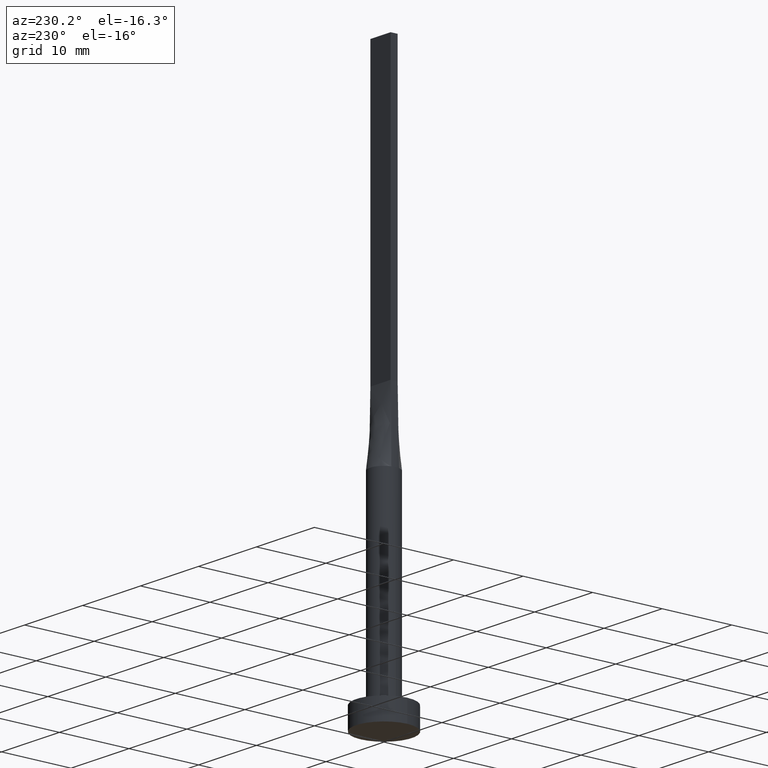
[diagram: clean part render]
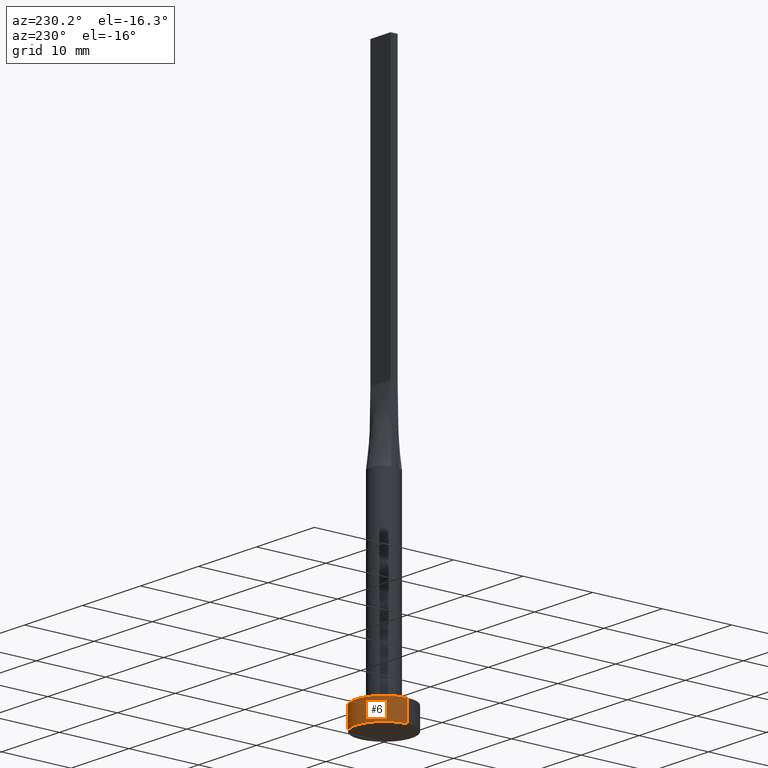
[diagram: same view with one face highlighted and labeled with its STEP entity id]
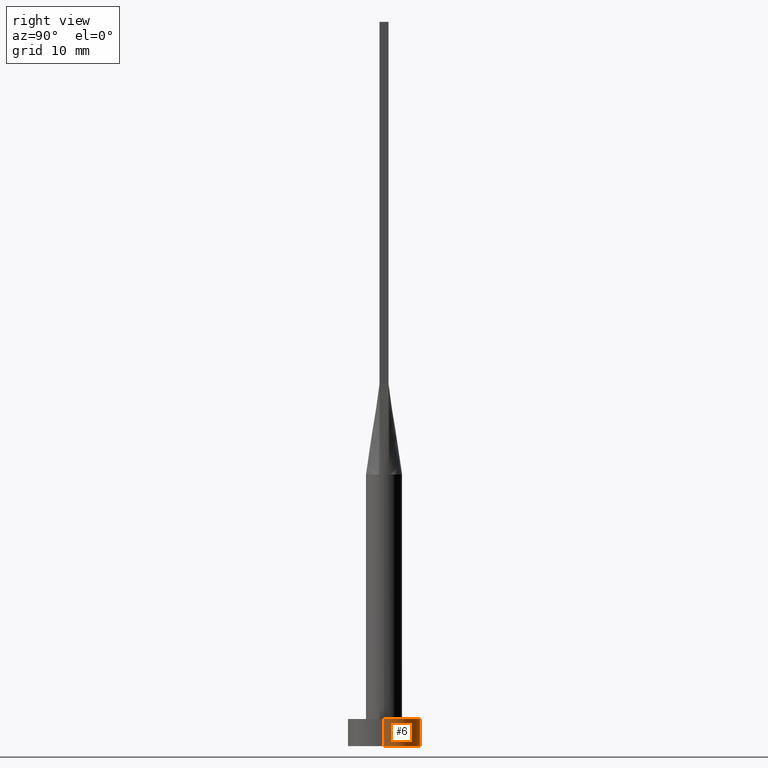
[diagram: same view with one face highlighted and labeled with its STEP entity id]
A machine part, auxiliary view. The second image highlights one B-rep face of the part: STEP entity #6.
A second angle (right view) of the same face is appended — the face is thin or edge-on in the first view.
In plain terms, the highlighted cylindrical surface (edge-blend (fillet) strip) has radius 4 mm, axis along (-0, -0, -1).
Its self-contained STEP definition (entity closure, byte-faithful):
#6 = ADVANCED_FACE ( 'NONE', ( #524 ), #38, .T. ) ;
#16 = DIRECTION ( 'NONE',  ( -0.000000000000000000, -0.000000000000000000, -1.000000000000000000 ) ) ;
#38 = CYLINDRICAL_SURFACE ( 'NONE', #224, 4.000000000000000000 ) ;
#46 = AXIS2_PLACEMENT_3D ( 'NONE', #84, #263, #531 ) ;
#84 = CARTESIAN_POINT ( 'NONE',  ( 0.000000000000000000, 0.000000000000000000, 0.000000000000000000 ) ) ;
#139 = CARTESIAN_POINT ( 'NONE',  ( 4.000000000000000000, 4.898587196589412829E-16, 3.000000000000000000 ) ) ;
#144 = DIRECTION ( 'NONE',  ( 1.000000000000000000, 0.000000000000000000, 0.000000000000000000 ) ) ;
#153 = EDGE_CURVE ( 'NONE', #471, #559, #309, .T. ) ;
#169 = EDGE_CURVE ( 'NONE', #530, #241, #185, .T. ) ;
#170 = DIRECTION ( 'NONE',  ( -1.000000000000000000, 0.000000000000000000, 0.000000000000000000 ) ) ;
#185 = LINE ( 'NONE', #139, #375 ) ;
#191 = VECTOR ( 'NONE', #361, 1000.000000000000000 ) ;
#203 = ORIENTED_EDGE ( 'NONE', *, *, #153, .F. ) ;
#207 = CARTESIAN_POINT ( 'NONE',  ( 0.000000000000000000, 0.000000000000000000, 3.000000000000000000 ) ) ;
#224 = AXIS2_PLACEMENT_3D ( 'NONE', #207, #389, #170 ) ;
#241 = VERTEX_POINT ( 'NONE', #558 ) ;
#263 = DIRECTION ( 'NONE',  ( 0.000000000000000000, 0.000000000000000000, 1.000000000000000000 ) ) ;
#281 = EDGE_CURVE ( 'NONE', #530, #471, #316, .T. ) ;
#292 = ORIENTED_EDGE ( 'NONE', *, *, #424, .T. ) ;
#309 = LINE ( 'NONE', #415, #191 ) ;
#316 = CIRCLE ( 'NONE', #552, 4.000000000000000000 ) ;
#320 = CARTESIAN_POINT ( 'NONE',  ( -4.000000000000000000, 0.000000000000000000, 0.000000000000000000 ) ) ;
#323 = EDGE_LOOP ( 'NONE', ( #567, #481, #292, #203 ) ) ;
#361 = DIRECTION ( 'NONE',  ( -0.000000000000000000, -0.000000000000000000, -1.000000000000000000 ) ) ;
#369 = DIRECTION ( 'NONE',  ( 0.000000000000000000, 0.000000000000000000, 1.000000000000000000 ) ) ;
#375 = VECTOR ( 'NONE', #16, 1000.000000000000000 ) ;
#389 = DIRECTION ( 'NONE',  ( -0.000000000000000000, -0.000000000000000000, -1.000000000000000000 ) ) ;
#415 = CARTESIAN_POINT ( 'NONE',  ( -4.000000000000000000, 0.000000000000000000, 3.000000000000000000 ) ) ;
#424 = EDGE_CURVE ( 'NONE', #241, #559, #435, .T. ) ;
#435 = CIRCLE ( 'NONE', #46, 4.000000000000000000 ) ;
#445 = CARTESIAN_POINT ( 'NONE',  ( -4.000000000000000000, 0.000000000000000000, 3.000000000000000000 ) ) ;
#471 = VERTEX_POINT ( 'NONE', #445 ) ;
#481 = ORIENTED_EDGE ( 'NONE', *, *, #169, .T. ) ;
#524 = FACE_OUTER_BOUND ( 'NONE', #323, .T. ) ;
#530 = VERTEX_POINT ( 'NONE', #547 ) ;
#531 = DIRECTION ( 'NONE',  ( 1.000000000000000000, 0.000000000000000000, 0.000000000000000000 ) ) ;
#547 = CARTESIAN_POINT ( 'NONE',  ( 4.000000000000000000, 4.898587196589412829E-16, 3.000000000000000000 ) ) ;
#552 = AXIS2_PLACEMENT_3D ( 'NONE', #554, #369, #144 ) ;
#554 = CARTESIAN_POINT ( 'NONE',  ( 0.000000000000000000, 0.000000000000000000, 3.000000000000000000 ) ) ;
#558 = CARTESIAN_POINT ( 'NONE',  ( 4.000000000000000000, 4.898587196589412829E-16, 0.000000000000000000 ) ) ;
#559 = VERTEX_POINT ( 'NONE', #320 ) ;
#567 = ORIENTED_EDGE ( 'NONE', *, *, #281, .F. ) ;